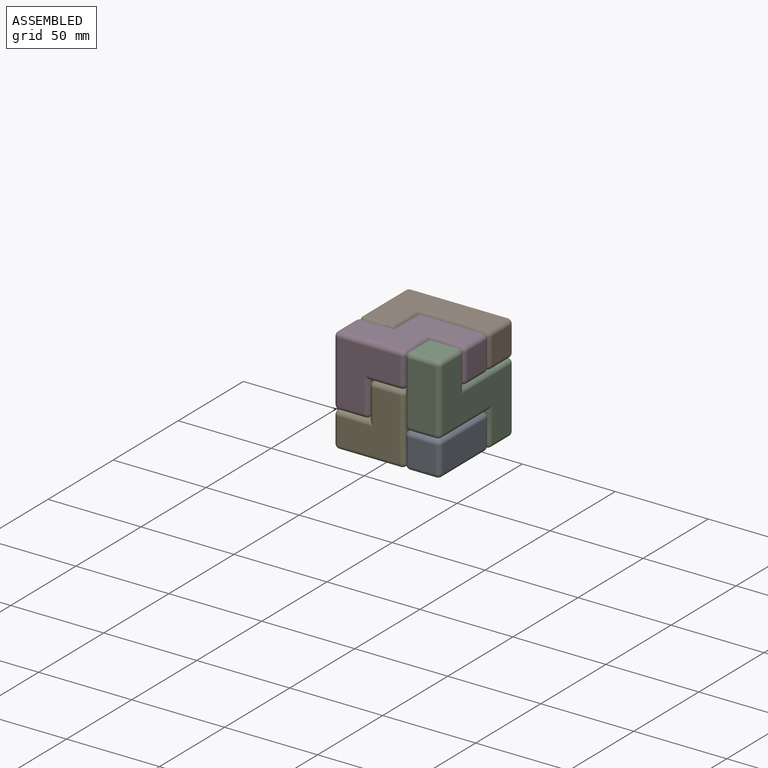
[diagram: assembled view]
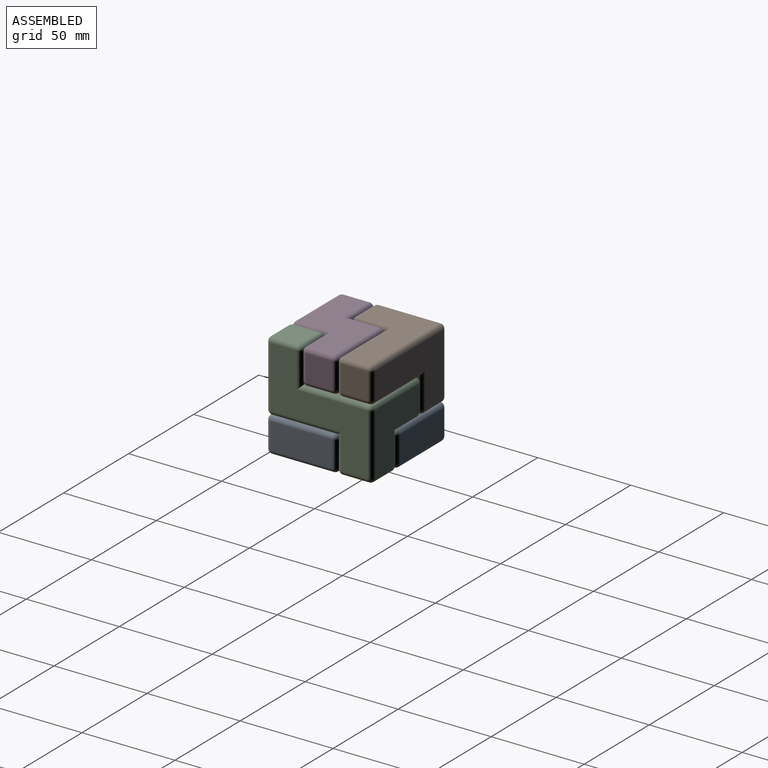
[diagram: assembled view, second angle]
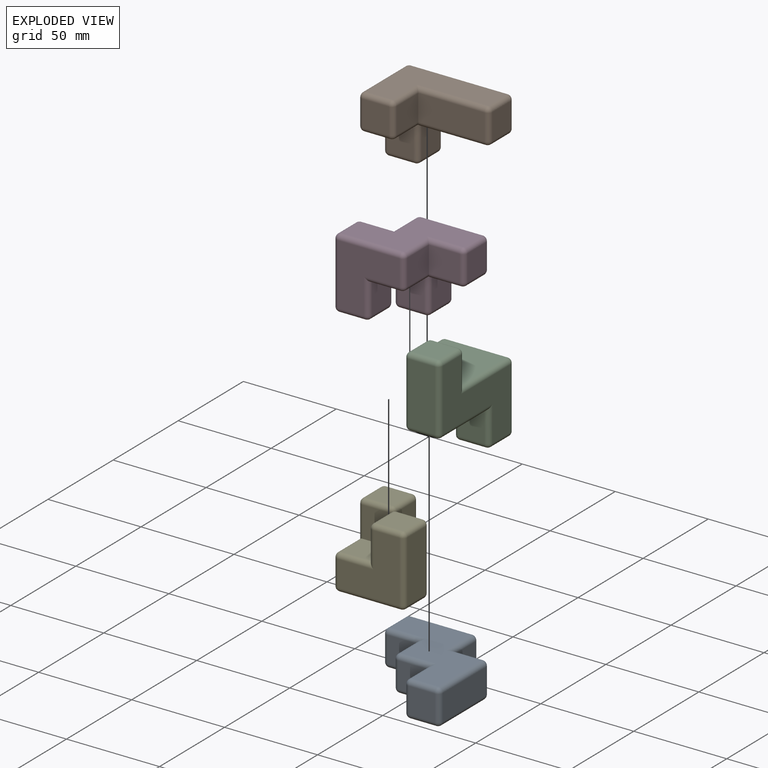
[diagram: exploded view]
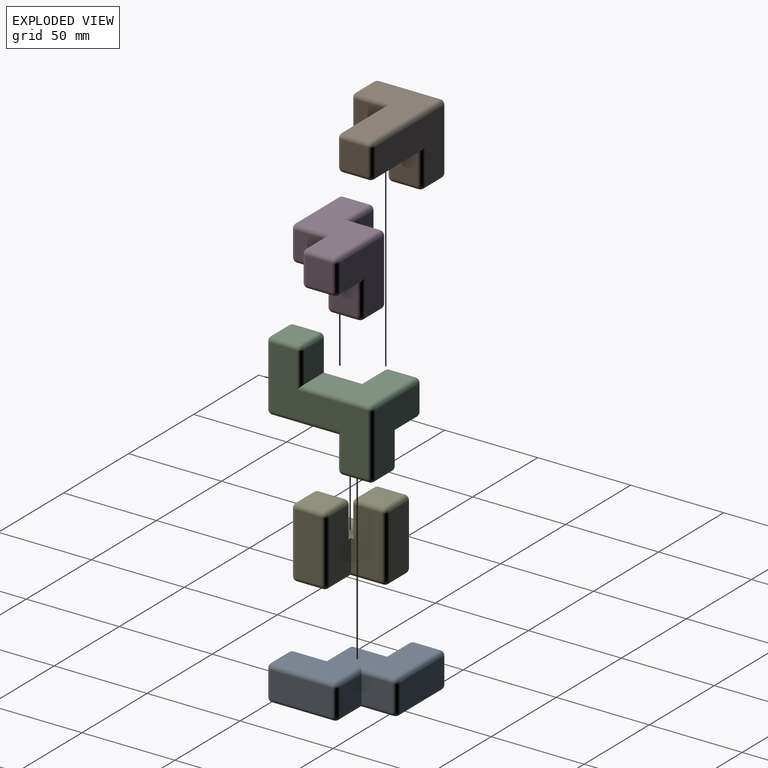
[diagram: exploded view, second angle]
ASSEMBLY  parts=5 mates=12
PART A: 53 faces, bbox 57.2x57.2x19.1 mm
  f0: plane 16.51x13.97mm, normal (0,1,0), area 230.6mm2, adj f9,f46,f49,f52
  f1: plane 33.02x13.97mm, normal (-1,0,0), area 461.3mm2, adj f39,f47,f48,f52
  f2: plane 13.97x13.97mm, normal (0,-1,0), area 195.2mm2, adj f29,f38,f39,f40
  f3: plane 16.51x13.97mm, normal (1,0,0), area 230.6mm2, adj f4,f28,f29,f30
  f4: plane 16.51x13.97mm, normal (0,-1,0), area 230.6mm2, adj f3,f14,f23,f24
  f5: plane 16.51x13.97mm, normal (1,0,0), area 230.6mm2, adj f6,f13,f14,f15
  f6: plane 16.51x13.97mm, normal (0,-1,0), area 230.6mm2, adj f5,f12,f16,f17
  f7: plane 13.97x13.97mm, normal (1,0,0), area 195.2mm2, adj f17,f22,f25,f26
  f8: plane 33.02x13.97mm, normal (0,1,0), area 461.3mm2, adj f26,f32,f35,f36
  f9: plane 16.51x13.97mm, normal (-1,0,0), area 230.6mm2, adj f0,f36,f42,f45
  f10: plane 52.07x52.07mm, normal (0,0,1), area 1259.7mm2, adj f12,f13,f22,f23,f28,f32,f38,f42
  f11: plane 52.07x52.07mm, normal (0,0,-1), area 1259.7mm2, adj f15,f16,f24,f25,f30,f35,f40,f45
  f12: cylinder r=2.54mm len=19.05mm, axis (-1,0,0), area 69.6mm2, adj f6,f10,f13,f18
  f13: cylinder r=2.54mm len=19.05mm, axis (0,-1,0), area 69.6mm2, adj f5,f10,f12,f19
  f14: cylinder r=2.54mm len=13.97mm, axis (0,0,-1), area 55.7mm2, adj f4,f5,f19,f20
  f15: cylinder r=2.54mm len=19.05mm, axis (0,1,0), area 69.6mm2, adj f5,f11,f16,f20
  f16: cylinder r=2.54mm len=19.05mm, axis (1,0,0), area 69.6mm2, adj f6,f11,f15,f21
  f17: cylinder r=2.54mm len=13.97mm, axis (0,0,-1), area 55.7mm2, adj f6,f7,f18,f21
  f18: sphere r=2.54mm, area 10.1mm2, adj f12,f17,f22
  f19: sphere r=2.54mm, area 10.1mm2, adj f13,f14,f23
  f20: sphere r=2.54mm, area 10.1mm2, adj f14,f15,f24
  f21: sphere r=2.54mm, area 10.1mm2, adj f16,f17,f25
  f22: cylinder r=2.54mm len=13.97mm, axis (0,-1,0), area 55.7mm2, adj f7,f10,f18,f27
  f23: cylinder r=2.54mm len=19.05mm, axis (-1,0,0), area 69.6mm2, adj f4,f10,f19,f28
  f24: cylinder r=2.54mm len=19.05mm, axis (1,0,0), area 69.6mm2, adj f4,f11,f20,f30
  f25: cylinder r=2.54mm len=13.97mm, axis (0,1,0), area 55.7mm2, adj f7,f11,f21,f31
  f26: cylinder r=2.54mm len=13.97mm, axis (0,0,-1), area 55.7mm2, adj f7,f8,f27,f31
  f27: sphere r=2.54mm, area 10.1mm2, adj f22,f26,f32
  f28: cylinder r=2.54mm len=19.05mm, axis (0,-1,0), area 69.6mm2, adj f3,f10,f23,f33
  f29: cylinder r=2.54mm len=13.97mm, axis (0,0,-1), area 55.7mm2, adj f2,f3,f33,f34
  f30: cylinder r=2.54mm len=19.05mm, axis (0,1,0), area 69.6mm2, adj f3,f11,f24,f34
  f31: sphere r=2.54mm, area 10.1mm2, adj f25,f26,f35
  f32: cylinder r=2.54mm len=33.02mm, axis (1,0,0), area 131.7mm2, adj f8,f10,f27,f37
  f33: sphere r=2.54mm, area 10.1mm2, adj f28,f29,f38
  f34: sphere r=2.54mm, area 10.1mm2, adj f29,f30,f40
  f35: cylinder r=2.54mm len=33.02mm, axis (-1,0,0), area 131.7mm2, adj f8,f11,f31,f41
  f36: cylinder r=2.54mm len=13.97mm, axis (0,0,-1), area 55.7mm2, adj f8,f9,f37,f41
  f37: sphere r=2.54mm, area 10.1mm2, adj f32,f36,f42
  f38: cylinder r=2.54mm len=13.97mm, axis (-1,0,0), area 55.7mm2, adj f2,f10,f33,f43
  f39: cylinder r=2.54mm len=13.97mm, axis (0,0,-1), area 55.7mm2, adj f1,f2,f43,f44
  f40: cylinder r=2.54mm len=13.97mm, axis (1,0,0), area 55.7mm2, adj f2,f11,f34,f44
  f41: sphere r=2.54mm, area 10.1mm2, adj f35,f36,f45
  f42: cylinder r=2.54mm len=19.05mm, axis (0,1,0), area 69.6mm2, adj f9,f10,f37,f46
  f43: sphere r=2.54mm, area 10.1mm2, adj f38,f39,f47
  f44: sphere r=2.54mm, area 10.1mm2, adj f39,f40,f48
  f45: cylinder r=2.54mm len=19.05mm, axis (0,-1,0), area 69.6mm2, adj f9,f11,f41,f49
  f46: cylinder r=2.54mm len=19.05mm, axis (1,0,0), area 69.6mm2, adj f0,f10,f42,f50
  f47: cylinder r=2.54mm len=33.02mm, axis (0,1,0), area 131.7mm2, adj f1,f10,f43,f50
  f48: cylinder r=2.54mm len=33.02mm, axis (0,-1,0), area 131.7mm2, adj f1,f11,f44,f51
  f49: cylinder r=2.54mm len=19.05mm, axis (-1,0,0), area 69.6mm2, adj f0,f11,f45,f51
  f50: sphere r=2.54mm, area 10.1mm2, adj f46,f47,f52
  f51: sphere r=2.54mm, area 10.1mm2, adj f48,f49,f52
  f52: cylinder r=2.54mm len=13.97mm, axis (0,0,-1), area 55.7mm2, adj f0,f1,f50,f51
PART B: 49 faces, bbox 38.1x57.2x38.1 mm
  f0: plane 16.51x13.97mm, normal (0,1,0), area 230.6mm2, adj f8,f39,f44,f45
  f1: plane 16.51x13.97mm, normal (0,0,1), area 230.6mm2, adj f10,f14,f21,f47
  f2: plane 52.07x33.02mm, normal (-1,0,0), area 993.5mm2, adj f26,f32,f37,f40,f43,f44
  f3: plane 33.02x33.02mm, normal (0,-1,0), area 727.4mm2, adj f15,f21,f22,f24,f31,f32
  f4: plane 13.97x13.97mm, normal (1,0,0), area 195.2mm2, adj f12,f14,f15,f16
  f5: plane 16.51x13.97mm, normal (0,1,0), area 230.6mm2, adj f6,f12,f17,f47
  f6: plane 35.56x13.97mm, normal (1,0,0), area 496.8mm2, adj f5,f20,f28,f29
  f7: plane 13.97x13.97mm, normal (0,1,0), area 195.2mm2, adj f27,f28,f37,f38
  f8: plane 35.56x13.97mm, normal (0,0,1), area 496.8mm2, adj f0,f29,f38,f43
  f9: plane 52.07x33.02mm, normal (0,0,-1), area 993.5mm2, adj f16,f17,f20,f22,f26,f27
  f10: plane 16.51x13.97mm, normal (1,0,0), area 230.6mm2, adj f1,f24,f35,f45
  f11: plane 13.97x13.97mm, normal (0,0,1), area 195.2mm2, adj f31,f35,f39,f40
  f12: cylinder r=2.54mm len=13.97mm, axis (0,0,-1), area 55.7mm2, adj f4,f5,f13,f48
  f13: sphere r=2.54mm, area 10.1mm2, adj f12,f16,f17
  f14: cylinder r=2.54mm len=13.97mm, axis (0,-1,0), area 55.7mm2, adj f1,f4,f18,f48
  f15: cylinder r=2.54mm len=13.97mm, axis (0,0,-1), area 55.7mm2, adj f3,f4,f18,f19
  f16: cylinder r=2.54mm len=13.97mm, axis (0,1,0), area 55.7mm2, adj f4,f9,f13,f19
  f17: cylinder r=2.54mm len=19.05mm, axis (-1,0,0), area 69.6mm2, adj f5,f9,f13,f20
  f18: sphere r=2.54mm, area 10.1mm2, adj f14,f15,f21
  f19: sphere r=2.54mm, area 10.1mm2, adj f15,f16,f22
  f20: cylinder r=2.54mm len=38.1mm, axis (0,1,0), area 145.6mm2, adj f6,f9,f17,f23
  f21: cylinder r=2.54mm len=19.05mm, axis (-1,0,0), area 69.6mm2, adj f1,f3,f18,f24
  f22: cylinder r=2.54mm len=33.02mm, axis (1,0,0), area 131.7mm2, adj f3,f9,f19,f25
  f23: sphere r=2.54mm, area 10.1mm2, adj f20,f27,f28
  f24: cylinder r=2.54mm len=19.05mm, axis (0,0,-1), area 69.6mm2, adj f3,f10,f21,f30
  f25: sphere r=2.54mm, area 10.1mm2, adj f22,f26,f32
  f26: cylinder r=2.54mm len=52.07mm, axis (0,-1,0), area 207.8mm2, adj f2,f9,f25,f33
  f27: cylinder r=2.54mm len=13.97mm, axis (-1,0,0), area 55.7mm2, adj f7,f9,f23,f33
  f28: cylinder r=2.54mm len=13.97mm, axis (0,0,-1), area 55.7mm2, adj f6,f7,f23,f34
  f29: cylinder r=2.54mm len=36.3mm, axis (0,-1,0), area 142.9mm2, adj f6,f8,f34,f45,f47
  f30: sphere r=2.54mm, area 10.1mm2, adj f24,f31,f35
  f31: cylinder r=2.54mm len=13.97mm, axis (-1,0,0), area 55.7mm2, adj f3,f11,f30,f36
  f32: cylinder r=2.54mm len=33.02mm, axis (0,0,-1), area 131.7mm2, adj f2,f3,f25,f36
  f33: sphere r=2.54mm, area 10.1mm2, adj f26,f27,f37
  f34: sphere r=2.54mm, area 10.1mm2, adj f28,f29,f38
  f35: cylinder r=2.54mm len=13.97mm, axis (0,-1,0), area 55.7mm2, adj f10,f11,f30,f46
  f36: sphere r=2.54mm, area 10.1mm2, adj f31,f32,f40
  f37: cylinder r=2.54mm len=13.97mm, axis (0,0,-1), area 55.7mm2, adj f2,f7,f33,f41
  f38: cylinder r=2.54mm len=13.97mm, axis (1,0,0), area 55.7mm2, adj f7,f8,f34,f41
  f39: cylinder r=2.54mm len=13.97mm, axis (1,0,0), area 55.7mm2, adj f0,f11,f42,f46
  f40: cylinder r=2.54mm len=13.97mm, axis (0,1,0), area 55.7mm2, adj f2,f11,f36,f42
  f41: sphere r=2.54mm, area 10.1mm2, adj f37,f38,f43
  f42: sphere r=2.54mm, area 10.1mm2, adj f39,f40,f44
  f43: cylinder r=2.54mm len=38.1mm, axis (0,1,0), area 145.6mm2, adj f2,f8,f41,f44
  f44: cylinder r=2.54mm len=19.05mm, axis (0,0,1), area 69.6mm2, adj f0,f2,f42,f43
  f45: cylinder r=2.54mm len=17.25mm, axis (0,0,-1), area 66.9mm2, adj f0,f10,f29,f46,f47
  f46: sphere r=2.54mm, area 10.1mm2, adj f35,f39,f45
  f47: cylinder r=2.54mm len=17.25mm, axis (1,0,0), area 66.9mm2, adj f1,f5,f29,f45,f48
  f48: sphere r=2.54mm, area 10.1mm2, adj f12,f14,f47
PART C: 58 faces, bbox 57.2x57.2x38.1 mm
  f0: plane 16.51x13.97mm, normal (1,0,0), area 230.6mm2, adj f1,f49,f52,f56
  f1: plane 35.56x33.02mm, normal (0,0,-1), area 762.9mm2, adj f0,f14,f17,f23,f24,f55
  f2: plane 33.02x33.02mm, normal (-1,0,0), area 727.4mm2, adj f33,f39,f40,f42,f45,f46
  f3: plane 35.56x33.02mm, normal (0,-1,0), area 762.9mm2, adj f4,f41,f46,f50,f52,f55
  f4: plane 16.51x13.97mm, normal (-1,0,0), area 230.6mm2, adj f3,f24,f31,f38
  f5: plane 13.97x13.97mm, normal (0,-1,0), area 195.2mm2, adj f22,f23,f30,f31
  f6: plane 33.02x13.97mm, normal (1,0,0), area 461.3mm2, adj f16,f17,f21,f22
  f7: plane 35.56x13.97mm, normal (0,1,0), area 496.8mm2, adj f8,f14,f16,f20
  f8: plane 16.51x13.97mm, normal (1,0,0), area 230.6mm2, adj f7,f25,f28,f53
  f9: plane 13.97x13.97mm, normal (0,1,0), area 195.2mm2, adj f28,f32,f33,f34
  f10: plane 52.07x52.07mm, normal (0,0,1), area 1259.7mm2, adj f20,f21,f25,f30,f34,f38,f40,f41
  f11: plane 16.51x13.97mm, normal (0,0,-1), area 230.6mm2, adj f12,f32,f39,f53
  f12: plane 16.51x13.97mm, normal (0,1,0), area 230.6mm2, adj f11,f42,f47,f56
  f13: plane 13.97x13.97mm, normal (0,0,-1), area 195.2mm2, adj f45,f47,f49,f50
  f14: cylinder r=2.54mm len=36.3mm, axis (-1,0,0), area 142.9mm2, adj f1,f7,f15,f53,f56
  f15: sphere r=2.54mm, area 10.1mm2, adj f14,f16,f17
  f16: cylinder r=2.54mm len=13.97mm, axis (0,0,-1), area 55.7mm2, adj f6,f7,f15,f18
  f17: cylinder r=2.54mm len=33.02mm, axis (0,1,0), area 131.7mm2, adj f1,f6,f15,f19
  f18: sphere r=2.54mm, area 10.1mm2, adj f16,f20,f21
  f19: sphere r=2.54mm, area 10.1mm2, adj f17,f22,f23
  f20: cylinder r=2.54mm len=38.1mm, axis (1,0,0), area 145.6mm2, adj f7,f10,f18,f25
  f21: cylinder r=2.54mm len=33.02mm, axis (0,-1,0), area 131.7mm2, adj f6,f10,f18,f26
  f22: cylinder r=2.54mm len=13.97mm, axis (0,0,-1), area 55.7mm2, adj f5,f6,f19,f26
  f23: cylinder r=2.54mm len=13.97mm, axis (1,0,0), area 55.7mm2, adj f1,f5,f19,f27
  f24: cylinder r=2.54mm len=19.05mm, axis (0,-1,0), area 69.6mm2, adj f1,f4,f27,f55
  f25: cylinder r=2.54mm len=19.05mm, axis (0,-1,0), area 69.6mm2, adj f8,f10,f20,f29
  f26: sphere r=2.54mm, area 10.1mm2, adj f21,f22,f30
  f27: sphere r=2.54mm, area 10.1mm2, adj f23,f24,f31
  f28: cylinder r=2.54mm len=13.97mm, axis (0,0,-1), area 55.7mm2, adj f8,f9,f29,f54
  f29: sphere r=2.54mm, area 10.1mm2, adj f25,f28,f34
  f30: cylinder r=2.54mm len=13.97mm, axis (-1,0,0), area 55.7mm2, adj f5,f10,f26,f35
  f31: cylinder r=2.54mm len=13.97mm, axis (0,0,-1), area 55.7mm2, adj f4,f5,f27,f35
  f32: cylinder r=2.54mm len=13.97mm, axis (-1,0,0), area 55.7mm2, adj f9,f11,f36,f54
  f33: cylinder r=2.54mm len=13.97mm, axis (0,0,-1), area 55.7mm2, adj f2,f9,f36,f37
  f34: cylinder r=2.54mm len=13.97mm, axis (1,0,0), area 55.7mm2, adj f9,f10,f29,f37
  f35: sphere r=2.54mm, area 10.1mm2, adj f30,f31,f38
  f36: sphere r=2.54mm, area 10.1mm2, adj f32,f33,f39
  f37: sphere r=2.54mm, area 10.1mm2, adj f33,f34,f40
  f38: cylinder r=2.54mm len=19.05mm, axis (0,1,0), area 69.6mm2, adj f4,f10,f35,f41
  f39: cylinder r=2.54mm len=19.05mm, axis (0,-1,0), area 69.6mm2, adj f2,f11,f36,f42
  f40: cylinder r=2.54mm len=33.02mm, axis (0,1,0), area 131.7mm2, adj f2,f10,f37,f43
  f41: cylinder r=2.54mm len=38.1mm, axis (-1,0,0), area 145.6mm2, adj f3,f10,f38,f43
  f42: cylinder r=2.54mm len=19.05mm, axis (0,0,1), area 69.6mm2, adj f2,f12,f39,f44
  f43: sphere r=2.54mm, area 10.1mm2, adj f40,f41,f46
  f44: sphere r=2.54mm, area 10.1mm2, adj f42,f45,f47
  f45: cylinder r=2.54mm len=13.97mm, axis (0,1,0), area 55.7mm2, adj f2,f13,f44,f48
  f46: cylinder r=2.54mm len=33.02mm, axis (0,0,-1), area 131.7mm2, adj f2,f3,f43,f48
  f47: cylinder r=2.54mm len=13.97mm, axis (-1,0,0), area 55.7mm2, adj f12,f13,f44,f57
  f48: sphere r=2.54mm, area 10.1mm2, adj f45,f46,f50
  f49: cylinder r=2.54mm len=13.97mm, axis (0,1,0), area 55.7mm2, adj f0,f13,f51,f57
  f50: cylinder r=2.54mm len=13.97mm, axis (-1,0,0), area 55.7mm2, adj f3,f13,f48,f51
  f51: sphere r=2.54mm, area 10.1mm2, adj f49,f50,f52
  f52: cylinder r=2.54mm len=19.05mm, axis (0,0,-1), area 69.6mm2, adj f0,f3,f51,f55
  f53: cylinder r=2.54mm len=17.25mm, axis (0,1,0), area 66.9mm2, adj f8,f11,f14,f54,f56
  f54: sphere r=2.54mm, area 10.1mm2, adj f28,f32,f53
  f55: cylinder r=2.54mm len=24.13mm, axis (1,0,0), area 83.4mm2, adj f1,f3,f24,f52
  f56: cylinder r=2.54mm len=17.25mm, axis (0,0,1), area 66.9mm2, adj f0,f12,f14,f53,f57
  f57: sphere r=2.54mm, area 10.1mm2, adj f47,f49,f56
PART D: 65 faces, bbox 38.1x57.2x38.1 mm
  f0: plane 16.51x13.97mm, normal (0,1,0), area 230.6mm2, adj f9,f20,f26,f63
  f1: plane 16.51x13.97mm, normal (0,0,1), area 230.6mm2, adj f14,f38,f45,f59
  f2: plane 19.05x19.05mm, normal (0,0,1), area 275.3mm2, adj f5,f6,f11,f13,f15,f18,f58,f63
  f3: plane 33.02x33.02mm, normal (-1,0,0), area 727.4mm2, adj f17,f18,f20,f21,f27,f28
  f4: plane 33.02x13.97mm, normal (0,-1,0), area 461.3mm2, adj f28,f29,f36,f37
  f5: plane 33.02x16.51mm, normal (1,0,0), area 503.2mm2, adj f2,f6,f13,f30,f37,f44
  f6: plane 33.02x16.51mm, normal (0,-1,0), area 503.2mm2, adj f2,f5,f47,f52,f56,f58
  f7: plane 33.02x33.02mm, normal (1,0,0), area 727.4mm2, adj f39,f45,f46,f48,f51,f52
  f8: plane 13.97x13.97mm, normal (0,1,0), area 195.2mm2, adj f34,f38,f39,f40
  f9: plane 16.51x13.97mm, normal (-1,0,0), area 230.6mm2, adj f0,f31,f34,f59
  f10: plane 52.07x33.02mm, normal (0,0,-1), area 993.5mm2, adj f26,f27,f31,f36,f40,f44,f46,f47
  f11: plane 16.51x13.97mm, normal (0,1,0), area 230.6mm2, adj f2,f13,f17,f22
  f12: plane 13.97x13.97mm, normal (0,0,1), area 195.2mm2, adj f21,f22,f29,f30
  f13: cylinder r=2.54mm len=16.51mm, axis (0,0,-1), area 65.9mm2, adj f2,f5,f11,f25
  f14: plane 16.51x13.97mm, normal (0,1,0), area 230.6mm2, adj f1,f48,f53,f61
  f15: plane 16.51x13.97mm, normal (-1,0,0), area 230.6mm2, adj f2,f55,f58,f61
  f16: plane 13.97x13.97mm, normal (0,0,1), area 195.2mm2, adj f51,f53,f55,f56
  f17: cylinder r=2.54mm len=19.05mm, axis (0,0,-1), area 69.6mm2, adj f3,f11,f18,f19
  f18: cylinder r=2.54mm len=19.05mm, axis (0,1,0), area 69.6mm2, adj f2,f3,f17,f64
  f19: sphere r=2.54mm, area 10.1mm2, adj f17,f21,f22
  f20: cylinder r=2.54mm len=13.97mm, axis (0,0,-1), area 55.7mm2, adj f0,f3,f23,f64
  f21: cylinder r=2.54mm len=13.97mm, axis (0,1,0), area 55.7mm2, adj f3,f12,f19,f24
  f22: cylinder r=2.54mm len=13.97mm, axis (1,0,0), area 55.7mm2, adj f11,f12,f19,f25
  f23: sphere r=2.54mm, area 10.1mm2, adj f20,f26,f27
  f24: sphere r=2.54mm, area 10.1mm2, adj f21,f28,f29
  f25: sphere r=2.54mm, area 10.1mm2, adj f13,f22,f30
  f26: cylinder r=2.54mm len=19.05mm, axis (-1,0,0), area 69.6mm2, adj f0,f10,f23,f31
  f27: cylinder r=2.54mm len=33.02mm, axis (0,-1,0), area 131.7mm2, adj f3,f10,f23,f32
  f28: cylinder r=2.54mm len=33.02mm, axis (0,0,-1), area 131.7mm2, adj f3,f4,f24,f32
  f29: cylinder r=2.54mm len=13.97mm, axis (-1,0,0), area 55.7mm2, adj f4,f12,f24,f33
  f30: cylinder r=2.54mm len=13.97mm, axis (0,-1,0), area 55.7mm2, adj f5,f12,f25,f33
  f31: cylinder r=2.54mm len=19.05mm, axis (0,-1,0), area 69.6mm2, adj f9,f10,f26,f35
  f32: sphere r=2.54mm, area 10.1mm2, adj f27,f28,f36
  f33: sphere r=2.54mm, area 10.1mm2, adj f29,f30,f37
  f34: cylinder r=2.54mm len=13.97mm, axis (0,0,-1), area 55.7mm2, adj f8,f9,f35,f60
  f35: sphere r=2.54mm, area 10.1mm2, adj f31,f34,f40
  f36: cylinder r=2.54mm len=13.97mm, axis (1,0,0), area 55.7mm2, adj f4,f10,f32,f41
  f37: cylinder r=2.54mm len=33.02mm, axis (0,0,-1), area 131.7mm2, adj f4,f5,f33,f41
  f38: cylinder r=2.54mm len=13.97mm, axis (1,0,0), area 55.7mm2, adj f1,f8,f42,f60
  f39: cylinder r=2.54mm len=13.97mm, axis (0,0,-1), area 55.7mm2, adj f7,f8,f42,f43
  f40: cylinder r=2.54mm len=13.97mm, axis (-1,0,0), area 55.7mm2, adj f8,f10,f35,f43
  f41: sphere r=2.54mm, area 10.1mm2, adj f36,f37,f44
  f42: sphere r=2.54mm, area 10.1mm2, adj f38,f39,f45
  f43: sphere r=2.54mm, area 10.1mm2, adj f39,f40,f46
  f44: cylinder r=2.54mm len=19.05mm, axis (0,1,0), area 69.6mm2, adj f5,f10,f41,f47
  f45: cylinder r=2.54mm len=19.05mm, axis (0,-1,0), area 69.6mm2, adj f1,f7,f42,f48
  f46: cylinder r=2.54mm len=33.02mm, axis (0,1,0), area 131.7mm2, adj f7,f10,f43,f49
  f47: cylinder r=2.54mm len=19.05mm, axis (1,0,0), area 69.6mm2, adj f6,f10,f44,f49
  f48: cylinder r=2.54mm len=19.05mm, axis (0,0,-1), area 69.6mm2, adj f7,f14,f45,f50
  f49: sphere r=2.54mm, area 10.1mm2, adj f46,f47,f52
  f50: sphere r=2.54mm, area 10.1mm2, adj f48,f51,f53
  f51: cylinder r=2.54mm len=13.97mm, axis (0,-1,0), area 55.7mm2, adj f7,f16,f50,f54
  f52: cylinder r=2.54mm len=33.02mm, axis (0,0,-1), area 131.7mm2, adj f6,f7,f49,f54
  f53: cylinder r=2.54mm len=13.97mm, axis (1,0,0), area 55.7mm2, adj f14,f16,f50,f62
  f54: sphere r=2.54mm, area 10.1mm2, adj f51,f52,f56
  f55: cylinder r=2.54mm len=13.97mm, axis (0,1,0), area 55.7mm2, adj f15,f16,f57,f62
  f56: cylinder r=2.54mm len=13.97mm, axis (-1,0,0), area 55.7mm2, adj f6,f16,f54,f57
  f57: sphere r=2.54mm, area 10.1mm2, adj f55,f56,f58
  f58: cylinder r=2.54mm len=16.51mm, axis (0,0,1), area 65.9mm2, adj f2,f6,f15,f57
  f59: cylinder r=2.54mm len=17.25mm, axis (0,1,0), area 66.9mm2, adj f1,f9,f60,f61,f63
  f60: sphere r=2.54mm, area 10.1mm2, adj f34,f38,f59
  f61: cylinder r=2.54mm len=17.25mm, axis (0,0,1), area 66.9mm2, adj f14,f15,f59,f62,f63
  f62: sphere r=2.54mm, area 10.1mm2, adj f53,f55,f61
  f63: cylinder r=2.54mm len=17.25mm, axis (1,0,0), area 66.9mm2, adj f0,f2,f59,f61,f64
  f64: sphere r=2.54mm, area 10.1mm2, adj f18,f20,f63
PART E: 51 faces, bbox 38.1x38.1x38.1 mm
  f0: plane 19.05x19.05mm, normal (0,0,1), area 275.3mm2, adj f4,f5,f8,f10,f11,f38,f43,f49
  f1: plane 33.02x33.02mm, normal (-1,0,0), area 727.4mm2, adj f34,f35,f44,f45,f49,f50
  f2: plane 33.02x33.02mm, normal (0,-1,0), area 727.4mm2, adj f23,f28,f33,f39,f43,f44
  f3: plane 33.02x13.97mm, normal (1,0,0), area 461.3mm2, adj f14,f18,f23,f24
  f4: plane 33.02x16.51mm, normal (0,1,0), area 503.2mm2, adj f0,f5,f10,f14,f15,f17
  f5: plane 33.02x16.51mm, normal (1,0,0), area 503.2mm2, adj f0,f4,f16,f26,f37,f38
  f6: plane 33.02x13.97mm, normal (0,1,0), area 461.3mm2, adj f25,f26,f35,f36
  f7: plane 33.02x33.02mm, normal (0,0,-1), area 727.4mm2, adj f15,f16,f24,f25,f33,f34
  f8: plane 16.51x13.97mm, normal (-1,0,0), area 230.6mm2, adj f0,f10,f27,f39
  f9: plane 13.97x13.97mm, normal (0,0,1), area 195.2mm2, adj f17,f18,f27,f28
  f10: cylinder r=2.54mm len=16.51mm, axis (0,0,-1), area 65.9mm2, adj f0,f4,f8,f21
  f11: plane 16.51x13.97mm, normal (0,-1,0), area 230.6mm2, adj f0,f38,f46,f50
  f12: plane 13.97x13.97mm, normal (0,0,1), area 195.2mm2, adj f36,f37,f45,f46
  f13: sphere r=2.54mm, area 10.1mm2, adj f14,f17,f18
  f14: cylinder r=2.54mm len=33.02mm, axis (0,0,-1), area 131.7mm2, adj f3,f4,f13,f19
  f15: cylinder r=2.54mm len=19.05mm, axis (-1,0,0), area 69.6mm2, adj f4,f7,f16,f19
  f16: cylinder r=2.54mm len=19.05mm, axis (0,1,0), area 69.6mm2, adj f5,f7,f15,f20
  f17: cylinder r=2.54mm len=13.97mm, axis (1,0,0), area 55.7mm2, adj f4,f9,f13,f21
  f18: cylinder r=2.54mm len=13.97mm, axis (0,-1,0), area 55.7mm2, adj f3,f9,f13,f22
  f19: sphere r=2.54mm, area 10.1mm2, adj f14,f15,f24
  f20: sphere r=2.54mm, area 10.1mm2, adj f16,f25,f26
  f21: sphere r=2.54mm, area 10.1mm2, adj f10,f17,f27
  f22: sphere r=2.54mm, area 10.1mm2, adj f18,f23,f28
  f23: cylinder r=2.54mm len=33.02mm, axis (0,0,-1), area 131.7mm2, adj f2,f3,f22,f29
  f24: cylinder r=2.54mm len=13.97mm, axis (0,1,0), area 55.7mm2, adj f3,f7,f19,f29
  f25: cylinder r=2.54mm len=13.97mm, axis (-1,0,0), area 55.7mm2, adj f6,f7,f20,f30
  f26: cylinder r=2.54mm len=33.02mm, axis (0,0,-1), area 131.7mm2, adj f5,f6,f20,f31
  f27: cylinder r=2.54mm len=13.97mm, axis (0,1,0), area 55.7mm2, adj f8,f9,f21,f32
  f28: cylinder r=2.54mm len=13.97mm, axis (-1,0,0), area 55.7mm2, adj f2,f9,f22,f32
  f29: sphere r=2.54mm, area 10.1mm2, adj f23,f24,f33
  f30: sphere r=2.54mm, area 10.1mm2, adj f25,f34,f35
  f31: sphere r=2.54mm, area 10.1mm2, adj f26,f36,f37
  f32: sphere r=2.54mm, area 10.1mm2, adj f27,f28,f39
  f33: cylinder r=2.54mm len=33.02mm, axis (1,0,0), area 131.7mm2, adj f2,f7,f29,f40
  f34: cylinder r=2.54mm len=33.02mm, axis (0,-1,0), area 131.7mm2, adj f1,f7,f30,f40
  f35: cylinder r=2.54mm len=33.02mm, axis (0,0,-1), area 131.7mm2, adj f1,f6,f30,f41
  f36: cylinder r=2.54mm len=13.97mm, axis (1,0,0), area 55.7mm2, adj f6,f12,f31,f41
  f37: cylinder r=2.54mm len=13.97mm, axis (0,-1,0), area 55.7mm2, adj f5,f12,f31,f42
  f38: cylinder r=2.54mm len=16.51mm, axis (0,0,1), area 65.9mm2, adj f0,f5,f11,f42
  f39: cylinder r=2.54mm len=19.05mm, axis (0,0,-1), area 69.6mm2, adj f2,f8,f32,f43
  f40: sphere r=2.54mm, area 10.1mm2, adj f33,f34,f44
  f41: sphere r=2.54mm, area 10.1mm2, adj f35,f36,f45
  f42: sphere r=2.54mm, area 10.1mm2, adj f37,f38,f46
  f43: cylinder r=2.54mm len=19.05mm, axis (-1,0,0), area 69.6mm2, adj f0,f2,f39,f47
  f44: cylinder r=2.54mm len=13.97mm, axis (0,0,-1), area 55.7mm2, adj f1,f2,f40,f47
  f45: cylinder r=2.54mm len=13.97mm, axis (0,1,0), area 55.7mm2, adj f1,f12,f41,f48
  f46: cylinder r=2.54mm len=13.97mm, axis (-1,0,0), area 55.7mm2, adj f11,f12,f42,f48
  f47: sphere r=2.54mm, area 10.1mm2, adj f43,f44,f49
  f48: sphere r=2.54mm, area 10.1mm2, adj f45,f46,f50
  f49: cylinder r=2.54mm len=19.05mm, axis (0,1,0), area 69.6mm2, adj f0,f1,f47,f50
  f50: cylinder r=2.54mm len=19.05mm, axis (0,0,1), area 69.6mm2, adj f1,f11,f48,f49
PLACE A rot(axis=(0,0,-1),90deg) t=(-26.73,57.36,-17.24)mm
PLACE B rot(axis=(0.58,0.58,-0.58),120deg) t=(-26.73,57.36,39.91)mm
PLACE C rot(axis=(-0.58,0.58,-0.58),120deg) t=(11.37,57.36,20.86)mm
PLACE D rot(axis=(0.71,0.71,0),180deg) t=(-26.73,0.21,39.91)mm
PLACE E t=(-26.73,0.21,-17.24)mm fixed
MATE planar D.f0 <-> E.f3  axis (1,0,0) through (11.37,11.01,30.39)mm
MATE planar E.f2 <-> D.f3  axis (0,-1,0) through (-4.2,0.21,-1.67)mm
MATE planar B.f45 <-> C.f2  axis (0,1,0) through (-10.22,57.36,23.4)mm
MATE planar C.f5 <-> D.f10  axis (0,0,1) through (20.89,9.74,39.91)mm
MATE fastened D.f28 <-> E.f44  axis (0,0,-1) through (-24.19,2.75,1.81)mm
MATE planar A.f11 <-> E.f7  axis (0,0,-1) through (5.87,32.81,-17.24)mm
MATE planar A.f2 <-> E.f1  axis (-1,0,0) through (-26.73,47.84,-7.71)mm
MATE planar D.f8 <-> C.f10  axis (1,0,0) through (30.42,28.79,30.39)mm
MATE planar A.f1 <-> C.f14  axis (0,1,0) through (-7.68,57.36,-7.71)mm
MATE planar B.f2 <-> D.f10  axis (0,0,1) through (-3.26,43.42,39.91)mm
MATE planar B.f3 <-> E.f1  axis (-1,0,0) through (-26.73,41.8,24.35)mm
MATE planar C.f6 <-> D.f3  axis (0,-1,0) through (20.89,0.21,20.86)mm
